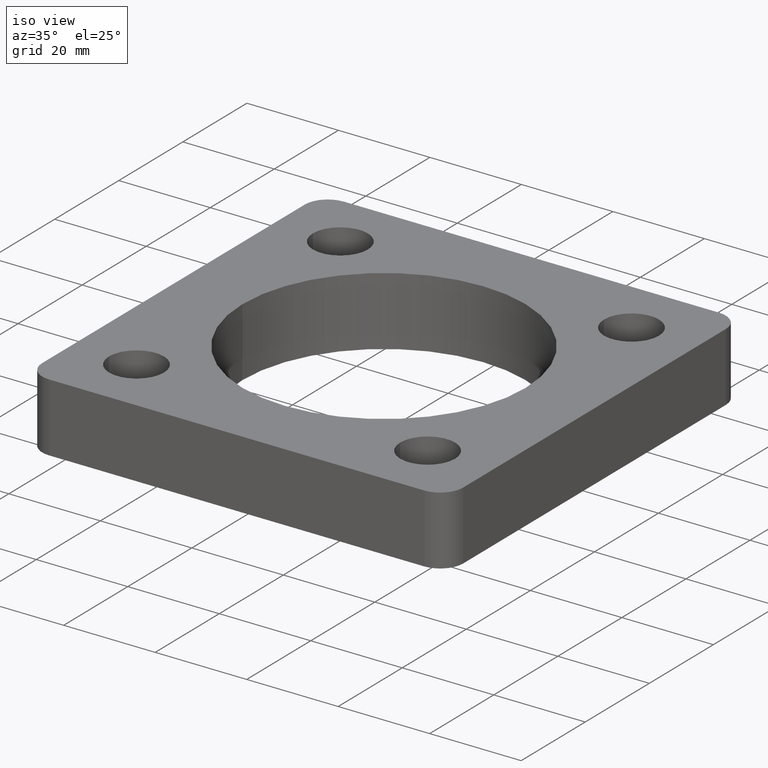
[diagram: clean part render]
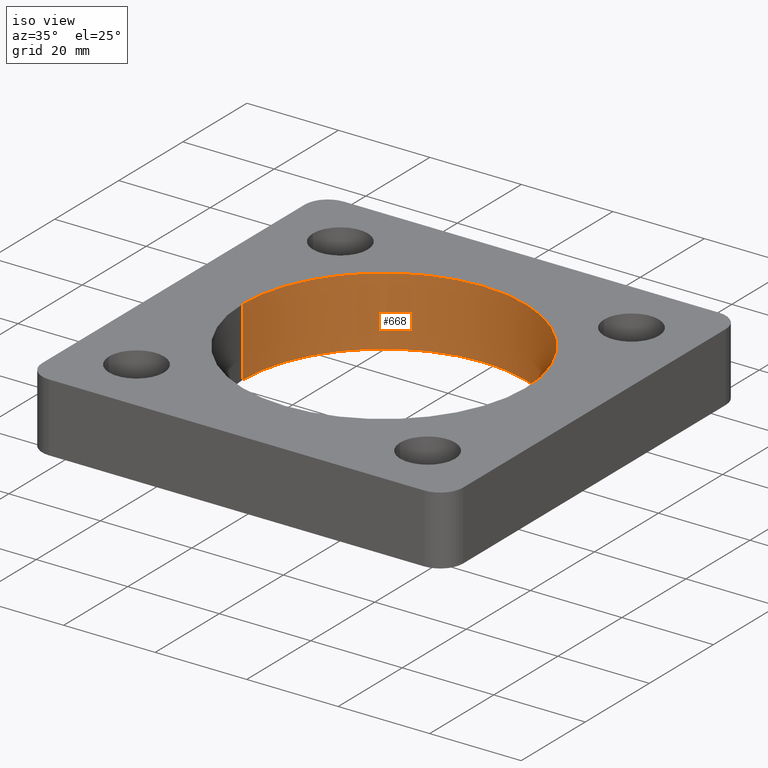
[diagram: same view with one face highlighted and labeled with its STEP entity id]
A machine part, iso view. The second image highlights one B-rep face of the part: STEP entity #668.
In plain terms, the highlighted cylindrical surface (partial cylindrical patch) has radius 30.95 mm, axis along (-0, -0, 1).
Its self-contained STEP definition (entity closure, byte-faithful):
#13 = CARTESIAN_POINT ( 'NONE',  ( 0.000000000000000000, 0.000000000000000000, -1.000000000000000000 ) ) ;
#15 = CARTESIAN_POINT ( 'NONE',  ( 30.95000000000000284, 0.000000000000000000, -1.000000000000000000 ) ) ;
#36 = VERTEX_POINT ( 'NONE', #163 ) ;
#45 = DIRECTION ( 'NONE',  ( -0.000000000000000000, -0.000000000000000000, 1.000000000000000000 ) ) ;
#71 = DIRECTION ( 'NONE',  ( 0.000000000000000000, 0.000000000000000000, 1.000000000000000000 ) ) ;
#73 = CARTESIAN_POINT ( 'NONE',  ( -30.95000000000000284, 3.790281843361058831E-15, -16.00000000000000000 ) ) ;
#96 = CARTESIAN_POINT ( 'NONE',  ( 0.000000000000000000, 0.000000000000000000, -16.00000000000000000 ) ) ;
#121 = DIRECTION ( 'NONE',  ( -0.000000000000000000, -0.000000000000000000, 1.000000000000000000 ) ) ;
#124 = AXIS2_PLACEMENT_3D ( 'NONE', #13, #71, #168 ) ;
#133 = ORIENTED_EDGE ( 'NONE', *, *, #744, .T. ) ;
#161 = CARTESIAN_POINT ( 'NONE',  ( 30.95000000000000284, 0.000000000000000000, -16.00000000000000000 ) ) ;
#163 = CARTESIAN_POINT ( 'NONE',  ( -30.95000000000000284, 3.790281843361058831E-15, -16.00000000000000000 ) ) ;
#168 = DIRECTION ( 'NONE',  ( 1.000000000000000000, 0.000000000000000000, 0.000000000000000000 ) ) ;
#182 = VECTOR ( 'NONE', #121, 1000.000000000000000 ) ;
#198 = ORIENTED_EDGE ( 'NONE', *, *, #731, .T. ) ;
#234 = LINE ( 'NONE', #283, #182 ) ;
#244 = AXIS2_PLACEMENT_3D ( 'NONE', #273, #342, #563 ) ;
#245 = VECTOR ( 'NONE', #521, 1000.000000000000000 ) ;
#273 = CARTESIAN_POINT ( 'NONE',  ( 0.000000000000000000, 0.000000000000000000, -16.00000000000000000 ) ) ;
#281 = VERTEX_POINT ( 'NONE', #285 ) ;
#283 = CARTESIAN_POINT ( 'NONE',  ( 30.95000000000000284, 0.000000000000000000, -16.00000000000000000 ) ) ;
#285 = CARTESIAN_POINT ( 'NONE',  ( -30.95000000000000284, 3.790281843361058831E-15, -1.000000000000000000 ) ) ;
#296 = EDGE_LOOP ( 'NONE', ( #598, #360, #198, #133 ) ) ;
#321 = CIRCLE ( 'NONE', #244, 30.95000000000000284 ) ;
#333 = CYLINDRICAL_SURFACE ( 'NONE', #445, 30.95000000000000284 ) ;
#342 = DIRECTION ( 'NONE',  ( 0.000000000000000000, 0.000000000000000000, 1.000000000000000000 ) ) ;
#346 = EDGE_CURVE ( 'NONE', #620, #36, #321, .T. ) ;
#360 = ORIENTED_EDGE ( 'NONE', *, *, #346, .F. ) ;
#443 = FACE_OUTER_BOUND ( 'NONE', #296, .T. ) ;
#445 = AXIS2_PLACEMENT_3D ( 'NONE', #96, #45, #490 ) ;
#469 = CIRCLE ( 'NONE', #124, 30.95000000000000284 ) ;
#490 = DIRECTION ( 'NONE',  ( 1.000000000000000000, 0.000000000000000000, 0.000000000000000000 ) ) ;
#521 = DIRECTION ( 'NONE',  ( -0.000000000000000000, -0.000000000000000000, 1.000000000000000000 ) ) ;
#537 = LINE ( 'NONE', #73, #245 ) ;
#538 = VERTEX_POINT ( 'NONE', #15 ) ;
#539 = EDGE_CURVE ( 'NONE', #36, #281, #537, .T. ) ;
#563 = DIRECTION ( 'NONE',  ( 1.000000000000000000, 0.000000000000000000, 0.000000000000000000 ) ) ;
#598 = ORIENTED_EDGE ( 'NONE', *, *, #539, .F. ) ;
#620 = VERTEX_POINT ( 'NONE', #161 ) ;
#668 = ADVANCED_FACE ( 'NONE', ( #443 ), #333, .F. ) ;
#731 = EDGE_CURVE ( 'NONE', #620, #538, #234, .T. ) ;
#744 = EDGE_CURVE ( 'NONE', #538, #281, #469, .T. ) ;